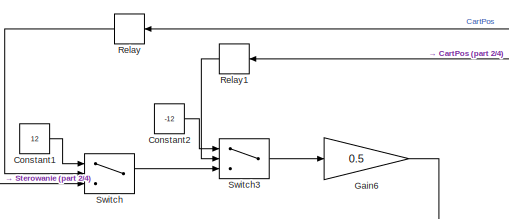
[diagram: root canvas - part 1/4, top left region]
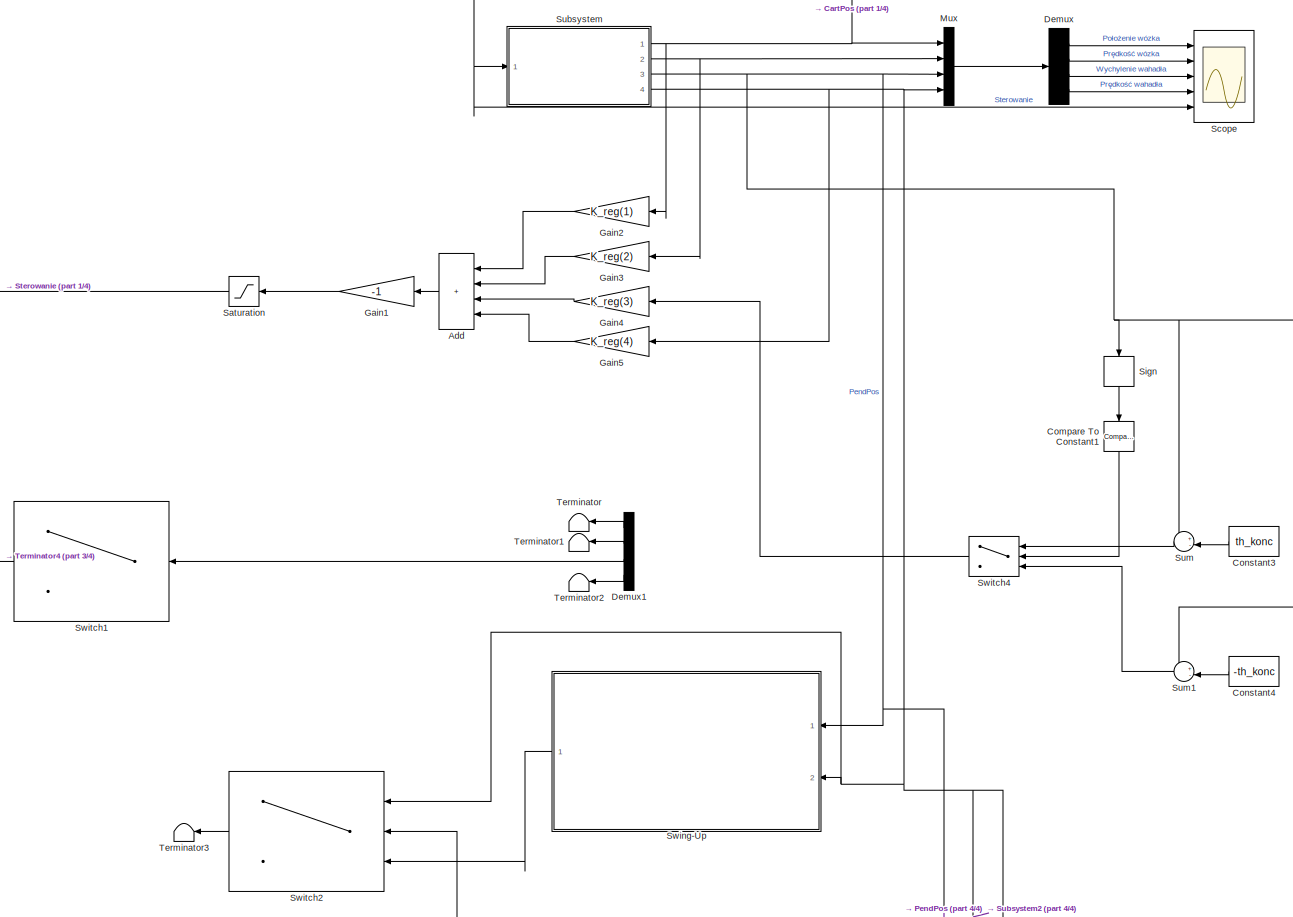
[diagram: root canvas - part 2/4, full width, middle band]
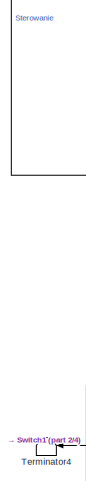
[diagram: root canvas - part 3/4, middle left region]
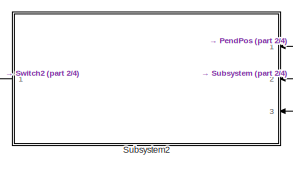
[diagram: root canvas - part 4/4, bottom center region]
MODEL slx_8b89d289fc42
KIND model
CONFIG AbsTol = auto
CONFIG EnableMultiTasking = off
CONFIG FixedStep = auto
CONFIG MaxStep = auto
CONFIG MinStep = auto
CONFIG RelTol = 1e-5
CONFIG SampleTimeConstraint = Unconstrained
CONFIG SolverName = ode45
CONFIG StartTime = 0.0
CONFIG StopTime = 10
BLOCK [Sum] Add
  IconShape = rectangular
  Inputs = ++++
  NameLocation = top
  Ports = [4, 1]
BLOCK [Reference] Compare To Constant1  REF=simulink/Logic and Bit
Operations/Compare
To Constant
  NameLocation = left
  Ports = [1, 1]
  SourceBlock = simulink/Logic and Bit\nOperations/Compare\nTo Constant
  SourceProductBaseCode = SL
  SourceType = Compare To Constant
BLOCK [Constant] Constant1
  Value = 12
BLOCK [Constant] Constant2
  Value = -12
BLOCK [Constant] Constant3
  NameLocation = top
  Value = th_konc
BLOCK [Constant] Constant4
  NameLocation = top
  Value = -th_konc
BLOCK [Demux] Demux
  Ports = [1, 4]
BLOCK [Demux] Demux1
  NameLocation = top
  Ports = [1, 4]
BLOCK [Gain] Gain1
  Gain = -1
  NameLocation = top
BLOCK [Gain] Gain2
  Gain = K_reg(1)
  NameLocation = top
BLOCK [Gain] Gain3
  Gain = K_reg(2)
  NameLocation = top
BLOCK [Gain] Gain4
  Gain = K_reg(3)
  NameLocation = top
BLOCK [Gain] Gain5
  Gain = K_reg(4)
  NameLocation = top
BLOCK [Gain] Gain6
  Gain = 0.5
BLOCK [Mux] Mux
  DisplayOption = bar
  Ports = [4, 1]
BLOCK [Relay] Relay
  NameLocation = top
  OffSwitchValue = 0.6
  OnSwitchValue = 0.7
BLOCK [Relay] Relay1
  NameLocation = top
  OffOutputValue = 1
  OffSwitchValue = -0.7
  OnOutputValue = 0
  OnSwitchValue = -0.6
BLOCK [Saturate] Saturation
  LowerLimit = -12
  NameLocation = top
  UpperLimit = 12
BLOCK [Scope] Scope
  Floating = off
  NumInputPorts = 5
  Ports = [5]
  ScopeSpecificationString = Simulink.scopes.TimeScopeBlockCfg('CurrentConfiguration', extmgr.ConfigurationSet(extmgr.Configuration('Core','General UI',true,'FigureColor',[0.156862745098039 0.156862745098039 0.156862745098039]),extmgr.Configuration('Core','Source UI',true),extmgr.Configuration('Sources','WiredSimulink',true,'DataLoggingSaveFormat','StructureWithTime','DataLoggingDecimation','1','DataLoggingDecimateData',true)...<+8737ch>
BLOCK [Signum] Sign
  NameLocation = left
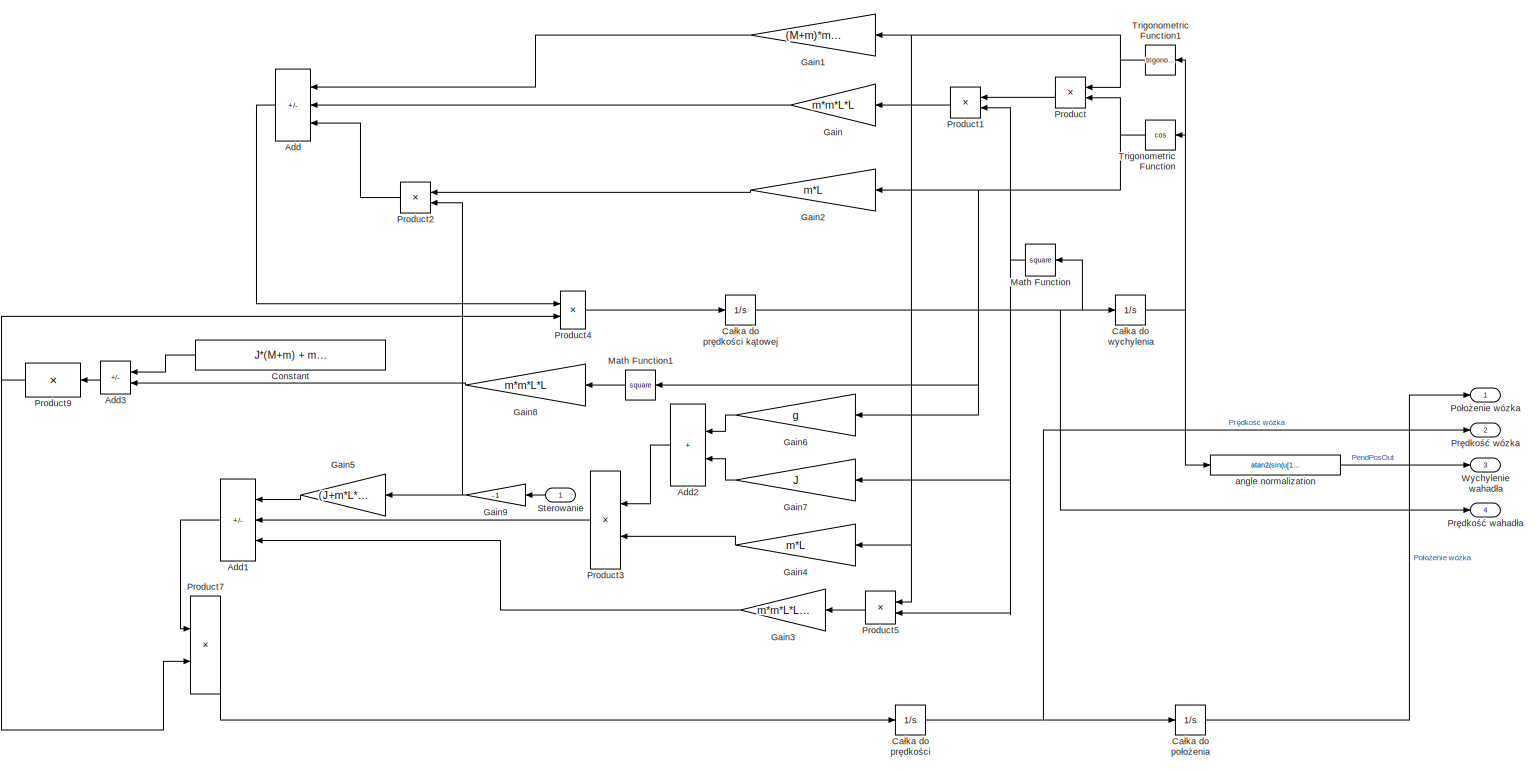
[diagram: Subsystem - part 1/1, most of the canvas]
BLOCK [SubSystem] Subsystem
  Ports = [1, 4]
  RequestExecContextInheritance = off
BLOCK [Sum] Subsystem/Add
  IconShape = rectangular
  Inputs = --+
  NameLocation = top
  Ports = [3, 1]
BLOCK [Sum] Subsystem/Add1
  IconShape = rectangular
  Inputs = +--
  NameLocation = top
  Ports = [3, 1]
BLOCK [Sum] Subsystem/Add2
  IconShape = rectangular
  NameLocation = top
  Ports = [2, 1]
BLOCK [Sum] Subsystem/Add3
  IconShape = rectangular
  Inputs = +-
  NameLocation = top
  Ports = [2, 1]
BLOCK [Integrator] Subsystem/Całka do położenia
  Ports = [1, 1]
BLOCK [Integrator] Subsystem/Całka do prędkości
  Ports = [1, 1]
BLOCK [Integrator] Subsystem/Całka do prędkości kątowej
  Ports = [1, 1]
BLOCK [Integrator] Subsystem/Całka do wychylenia
  InitialCondition = th_pocz
  Ports = [1, 1]
BLOCK [Constant] Subsystem/Constant
  NameLocation = top
  Value = J*(M+m) + m*M*L*L + m*m*L*L
BLOCK [Gain] Subsystem/Gain
  Gain = m*m*L*L
  NameLocation = top
BLOCK [Gain] Subsystem/Gain1
  Gain = (M+m)*m*g*L
  NameLocation = top
BLOCK [Gain] Subsystem/Gain2
  Gain = m*L
  NameLocation = top
BLOCK [Gain] Subsystem/Gain3
  Gain = m*m*L*L*L
  NameLocation = top
BLOCK [Gain] Subsystem/Gain4
  Gain = m*L
  NameLocation = top
BLOCK [Gain] Subsystem/Gain5
  Gain = (J+m*L*L)
  NameLocation = top
BLOCK [Gain] Subsystem/Gain6
  Gain = g
  NameLocation = top
BLOCK [Gain] Subsystem/Gain7
  Gain = J
  NameLocation = top
BLOCK [Gain] Subsystem/Gain8
  Gain = m*m*L*L
  NameLocation = top
BLOCK [Gain] Subsystem/Gain9
  Gain = -1
  NameLocation = top
BLOCK [Math] Subsystem/Math Function
  NameLocation = top
  Operator = square
  Ports = [1, 1]
  SignedPower = on
BLOCK [Math] Subsystem/Math Function1
  NameLocation = top
  Operator = square
  Ports = [1, 1]
  SignedPower = on
BLOCK [Outport] Subsystem/Położenie wózka
BLOCK [Product] Subsystem/Product
  NameLocation = top
  Ports = [2, 1]
BLOCK [Product] Subsystem/Product1
  NameLocation = top
  Ports = [2, 1]
BLOCK [Product] Subsystem/Product2
  NameLocation = top
  Ports = [2, 1]
BLOCK [Product] Subsystem/Product3
  NameLocation = top
  Ports = [2, 1]
BLOCK [Product] Subsystem/Product4
  Ports = [2, 1]
BLOCK [Product] Subsystem/Product5
  NameLocation = top
  Ports = [2, 1]
BLOCK [Product] Subsystem/Product7
  Ports = [2, 1]
BLOCK [Product] Subsystem/Product9
  Inputs = /
  Multiplication = Matrix(*)
  NameLocation = top
  Ports = [1, 1]
BLOCK [Outport] Subsystem/Prędkość wahadła
  Port = 4
BLOCK [Outport] Subsystem/Prędkość wózka
  Port = 2
BLOCK [Inport] Subsystem/Sterowanie
BLOCK [Trigonometry] Subsystem/Trigonometric Function
  NameLocation = top
  Operator = cos
  Ports = [1, 1]
BLOCK [Trigonometry] Subsystem/Trigonometric Function1
  NameLocation = top
  Ports = [1, 1]
BLOCK [Outport] Subsystem/Wychylenie wahadła
  Port = 3
BLOCK [Fcn] Subsystem/angle normalization
  Expr = atan2(sin(u[1]),cos(u[1]))
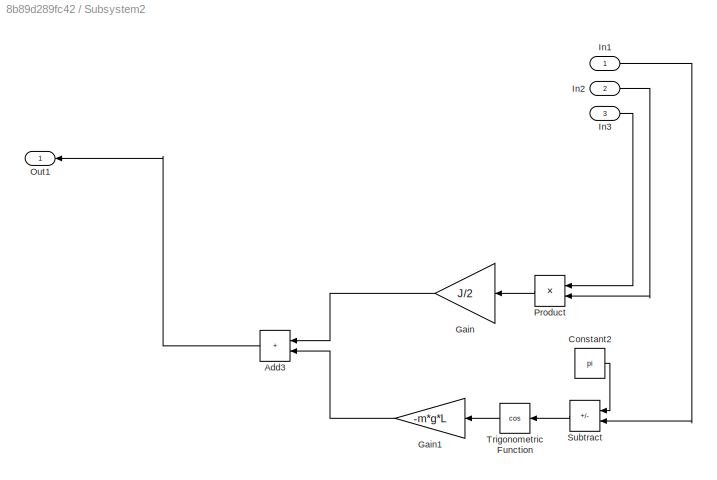
BLOCK [SubSystem] Subsystem2
  NameLocation = top
  Ports = [3, 1]
  RequestExecContextInheritance = off
BLOCK [Sum] Subsystem2/Add3
  IconShape = rectangular
  NameLocation = top
  Ports = [2, 1]
BLOCK [Constant] Subsystem2/Constant2
  Value = pi
BLOCK [Gain] Subsystem2/Gain
  Gain = J/2
  NameLocation = top
BLOCK [Gain] Subsystem2/Gain1
  Gain = -m*g*L
  NameLocation = top
BLOCK [Inport] Subsystem2/In1
BLOCK [Inport] Subsystem2/In2
  Port = 2
BLOCK [Inport] Subsystem2/In3
  Port = 3
BLOCK [Outport] Subsystem2/Out1
BLOCK [Product] Subsystem2/Product
  NameLocation = top
  Ports = [2, 1]
BLOCK [Sum] Subsystem2/Subtract
  IconShape = rectangular
  Inputs = +-
  NameLocation = top
  Ports = [2, 1]
BLOCK [Trigonometry] Subsystem2/Trigonometric Function
  NameLocation = top
  Operator = cos
  Ports = [1, 1]
BLOCK [Sum] Sum
  Inputs = +-|
  Ports = [2, 1]
BLOCK [Sum] Sum1
  Inputs = +-|
  Ports = [2, 1]
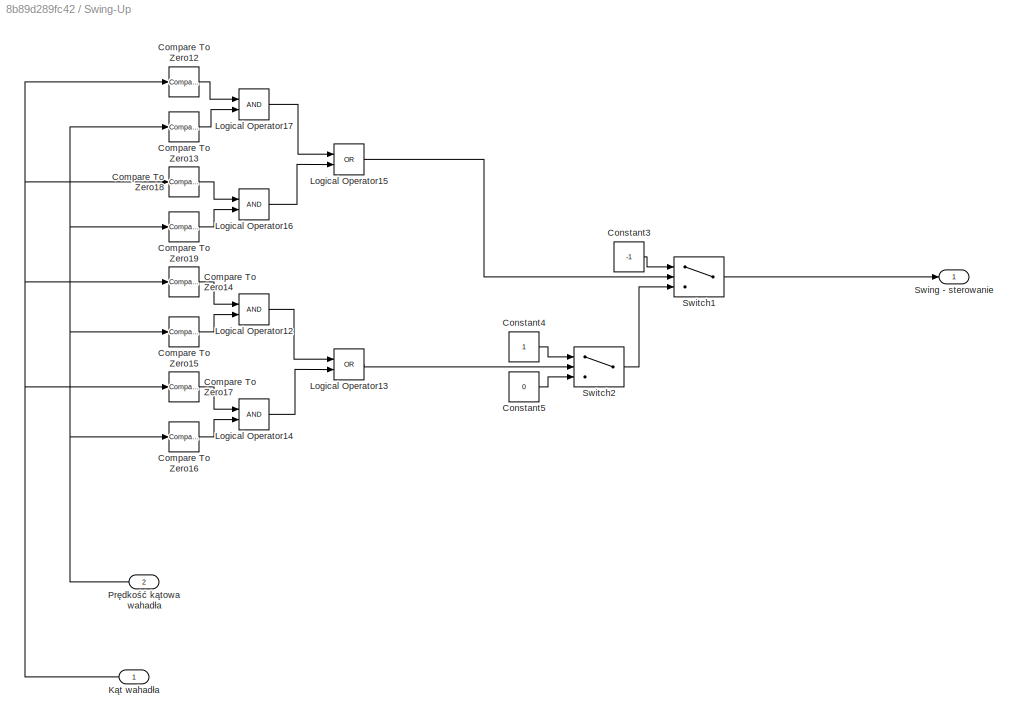
BLOCK [SubSystem] Swing-Up
  NameLocation = top
  Ports = [2, 1]
  RequestExecContextInheritance = off
BLOCK [Reference] Swing-Up/Compare To Zero12  REF=simulink/Logic and Bit
Operations/Compare
To Zero
  Ports = [1, 1]
  SourceBlock = simulink/Logic and Bit\nOperations/Compare\nTo Zero
  SourceProductBaseCode = SL
  SourceType = Compare To Zero
BLOCK [Reference] Swing-Up/Compare To Zero13  REF=simulink/Logic and Bit
Operations/Compare
To Zero
  Ports = [1, 1]
  SourceBlock = simulink/Logic and Bit\nOperations/Compare\nTo Zero
  SourceProductBaseCode = SL
  SourceType = Compare To Zero
BLOCK [Reference] Swing-Up/Compare To Zero14  REF=simulink/Logic and Bit
Operations/Compare
To Zero
  Ports = [1, 1]
  SourceBlock = simulink/Logic and Bit\nOperations/Compare\nTo Zero
  SourceProductBaseCode = SL
  SourceType = Compare To Zero
BLOCK [Reference] Swing-Up/Compare To Zero15  REF=simulink/Logic and Bit
Operations/Compare
To Zero
  Ports = [1, 1]
  SourceBlock = simulink/Logic and Bit\nOperations/Compare\nTo Zero
  SourceProductBaseCode = SL
  SourceType = Compare To Zero
BLOCK [Reference] Swing-Up/Compare To Zero16  REF=simulink/Logic and Bit
Operations/Compare
To Zero
  Ports = [1, 1]
  SourceBlock = simulink/Logic and Bit\nOperations/Compare\nTo Zero
  SourceProductBaseCode = SL
  SourceType = Compare To Zero
BLOCK [Reference] Swing-Up/Compare To Zero17  REF=simulink/Logic and Bit
Operations/Compare
To Zero
  Ports = [1, 1]
  SourceBlock = simulink/Logic and Bit\nOperations/Compare\nTo Zero
  SourceProductBaseCode = SL
  SourceType = Compare To Zero
BLOCK [Reference] Swing-Up/Compare To Zero18  REF=simulink/Logic and Bit
Operations/Compare
To Zero
  Ports = [1, 1]
  SourceBlock = simulink/Logic and Bit\nOperations/Compare\nTo Zero
  SourceProductBaseCode = SL
  SourceType = Compare To Zero
BLOCK [Reference] Swing-Up/Compare To Zero19  REF=simulink/Logic and Bit
Operations/Compare
To Zero
  Ports = [1, 1]
  SourceBlock = simulink/Logic and Bit\nOperations/Compare\nTo Zero
  SourceProductBaseCode = SL
  SourceType = Compare To Zero
BLOCK [Constant] Swing-Up/Constant3
  Value = -1
BLOCK [Constant] Swing-Up/Constant4
BLOCK [Constant] Swing-Up/Constant5
  Value = 0
BLOCK [Inport] Swing-Up/Kąt wahadła
  NameLocation = top
BLOCK [Logic] Swing-Up/Logical Operator12
  AllPortsSameDT = off
  OutDataTypeStr = boolean
  Ports = [2, 1]
BLOCK [Logic] Swing-Up/Logical Operator13
  AllPortsSameDT = off
  Operator = OR
  OutDataTypeStr = boolean
  Ports = [2, 1]
BLOCK [Logic] Swing-Up/Logical Operator14
  AllPortsSameDT = off
  OutDataTypeStr = boolean
  Ports = [2, 1]
BLOCK [Logic] Swing-Up/Logical Operator15
  AllPortsSameDT = off
  Operator = OR
  OutDataTypeStr = boolean
  Ports = [2, 1]
BLOCK [Logic] Swing-Up/Logical Operator16
  AllPortsSameDT = off
  OutDataTypeStr = boolean
  Ports = [2, 1]
BLOCK [Logic] Swing-Up/Logical Operator17
  AllPortsSameDT = off
  OutDataTypeStr = boolean
  Ports = [2, 1]
BLOCK [Inport] Swing-Up/Prędkość kątowa wahadła
  NameLocation = top
  Port = 2
BLOCK [Outport] Swing-Up/Swing - sterowanie
  NameLocation = top
BLOCK [Switch] Swing-Up/Switch1
  Criteria = u2 > Threshold
  InputSameDT = off
  SaturateOnIntegerOverflow = off
BLOCK [Switch] Swing-Up/Switch2
  Criteria = u2 ~= 0
  InputSameDT = off
  SaturateOnIntegerOverflow = off
BLOCK [Switch] Switch
  InputSameDT = off
  SaturateOnIntegerOverflow = off
  Threshold = 1
BLOCK [Switch] Switch1
  InputSameDT = off
  NameLocation = top
  SaturateOnIntegerOverflow = off
  Threshold = 0.5
BLOCK [Switch] Switch2
  InputSameDT = off
  NameLocation = top
  SaturateOnIntegerOverflow = off
  Threshold = 1.6
BLOCK [Switch] Switch3
  InputSameDT = off
  SaturateOnIntegerOverflow = off
  Threshold = 1
BLOCK [Switch] Switch4
  InputSameDT = off
  NameLocation = top
  SaturateOnIntegerOverflow = off
  Threshold = 1
BLOCK [Terminator] Terminator
  NameLocation = top
BLOCK [Terminator] Terminator1
  NameLocation = top
BLOCK [Terminator] Terminator2
  NameLocation = top
BLOCK [Terminator] Terminator3
  NameLocation = top
BLOCK [Terminator] Terminator4
  NameLocation = top
LINE Add:1 -> Gain1:1
LINE Compare To Constant1:1 -> Switch4:2
LINE Constant1:1 -> Switch:1
LINE Constant2:1 -> Switch3:1
LINE Constant3:1 -> Sum:2
LINE Constant4:1 -> Sum1:2
LINE Demux1:1 -> Terminator:1
LINE Demux1:2 -> Terminator1:1
LINE Demux1:3 -> Switch1:2
LINE Demux1:4 -> Terminator2:1
LINE Demux:1 -> Scope:1
LINE Demux:2 -> Scope:2
LINE Demux:3 -> Scope:3
LINE Demux:4 -> Scope:4
LINE Gain1:1 -> Saturation:1
LINE Gain2:1 -> Add:1
LINE Gain3:1 -> Add:2
LINE Gain4:1 -> Add:3
LINE Gain5:1 -> Add:4
NET Gain6:1 -> Scope:5, Subsystem:1
LINE Mux:1 -> Demux:1
LINE Relay1:1 -> Switch3:2
LINE Relay:1 -> Switch:2
LINE Saturation:1 -> Switch:3
LINE Sign:1 -> Compare To Constant1:1
LINE Subsystem/Add1:1 -> Subsystem/Product7:1
LINE Subsystem/Add2:1 -> Subsystem/Product3:1
LINE Subsystem/Add3:1 -> Subsystem/Product9:1
LINE Subsystem/Add:1 -> Subsystem/Product4:1
LINE Subsystem/Całka do położenia:1 -> Subsystem/Położenie wózka:1
NET Subsystem/Całka do prędkości kątowej:1 -> Subsystem/Całka do wychylenia:1, Subsystem/Math Function:1, Subsystem/Prędkość wahadła:1
NET Subsystem/Całka do prędkości:1 -> Subsystem/Całka do położenia:1, Subsystem/Prędkość wózka:1
NET Subsystem/Całka do wychylenia:1 -> Subsystem/Trigonometric Function1:1, Subsystem/Trigonometric Function:1, Subsystem/angle normalization:1
LINE Subsystem/Constant:1 -> Subsystem/Add3:1
LINE Subsystem/Gain1:1 -> Subsystem/Add:1
LINE Subsystem/Gain2:1 -> Subsystem/Product2:1
LINE Subsystem/Gain3:1 -> Subsystem/Add1:3
LINE Subsystem/Gain4:1 -> Subsystem/Product3:2
LINE Subsystem/Gain5:1 -> Subsystem/Add1:1
LINE Subsystem/Gain6:1 -> Subsystem/Add2:1
LINE Subsystem/Gain7:1 -> Subsystem/Add2:2
LINE Subsystem/Gain8:1 -> Subsystem/Add3:2
NET Subsystem/Gain9:1 -> Subsystem/Gain5:1, Subsystem/Product2:2
LINE Subsystem/Gain:1 -> Subsystem/Add:2
LINE Subsystem/Math Function1:1 -> Subsystem/Gain8:1
NET Subsystem/Math Function:1 -> Subsystem/Gain7:1, Subsystem/Product1:2, Subsystem/Product5:2
LINE Subsystem/Product1:1 -> Subsystem/Gain:1
LINE Subsystem/Product2:1 -> Subsystem/Add:3
LINE Subsystem/Product3:1 -> Subsystem/Add1:2
LINE Subsystem/Product4:1 -> Subsystem/Całka do prędkości kątowej:1
LINE Subsystem/Product5:1 -> Subsystem/Gain3:1
LINE Subsystem/Product7:1 -> Subsystem/Całka do prędkości:1
NET Subsystem/Product9:1 -> Subsystem/Product4:2, Subsystem/Product7:2
LINE Subsystem/Product:1 -> Subsystem/Product1:1
LINE Subsystem/Sterowanie:1 -> Subsystem/Gain9:1
NET Subsystem/Trigonometric Function1:1 -> Subsystem/Gain1:1, Subsystem/Gain4:1, Subsystem/Product5:1, Subsystem/Product:1
NET Subsystem/Trigonometric Function:1 -> Subsystem/Gain2:1, Subsystem/Gain6:1, Subsystem/Math Function1:1, Subsystem/Product:2
LINE Subsystem/angle normalization:1 -> Subsystem/Wychylenie wahadła:1
LINE Subsystem2/Add3:1 -> Subsystem2/Out1:1
LINE Subsystem2/Constant2:1 -> Subsystem2/Subtract:1
LINE Subsystem2/Gain1:1 -> Subsystem2/Add3:2
LINE Subsystem2/Gain:1 -> Subsystem2/Add3:1
LINE Subsystem2/In1:1 -> Subsystem2/Subtract:2
LINE Subsystem2/In2:1 -> Subsystem2/Product:2
LINE Subsystem2/In3:1 -> Subsystem2/Product:1
LINE Subsystem2/Product:1 -> Subsystem2/Gain:1
LINE Subsystem2/Subtract:1 -> Subsystem2/Trigonometric Function:1
LINE Subsystem2/Trigonometric Function:1 -> Subsystem2/Gain1:1
LINE Subsystem2:1 -> Switch2:2
NET Subsystem:1 -> Gain2:1, Mux:1, Relay1:1, Relay:1
NET Subsystem:2 -> Gain3:1, Mux:2
NET Subsystem:3 -> Mux:3, Sign:1, Subsystem2:1, Sum1:1, Sum:1, Swing-Up:1
NET Subsystem:4 -> Gain5:1, Mux:4, Subsystem2:2, Subsystem2:3, Swing-Up:2, Switch2:1
LINE Sum1:1 -> Switch4:3
LINE Sum:1 -> Switch4:1
LINE Swing-Up/Compare To Zero12:1 -> Swing-Up/Logical Operator17:1
LINE Swing-Up/Compare To Zero13:1 -> Swing-Up/Logical Operator17:2
LINE Swing-Up/Compare To Zero14:1 -> Swing-Up/Logical Operator12:1
LINE Swing-Up/Compare To Zero15:1 -> Swing-Up/Logical Operator12:2
LINE Swing-Up/Compare To Zero16:1 -> Swing-Up/Logical Operator14:2
LINE Swing-Up/Compare To Zero17:1 -> Swing-Up/Logical Operator14:1
LINE Swing-Up/Compare To Zero18:1 -> Swing-Up/Logical Operator16:1
LINE Swing-Up/Compare To Zero19:1 -> Swing-Up/Logical Operator16:2
LINE Swing-Up/Constant3:1 -> Swing-Up/Switch1:1
LINE Swing-Up/Constant4:1 -> Swing-Up/Switch2:1
LINE Swing-Up/Constant5:1 -> Swing-Up/Switch2:3
NET Swing-Up/Kąt wahadła:1 -> Swing-Up/Compare To Zero12:1, Swing-Up/Compare To Zero14:1, Swing-Up/Compare To Zero17:1, Swing-Up/Compare To Zero18:1
LINE Swing-Up/Logical Operator12:1 -> Swing-Up/Logical Operator13:1
LINE Swing-Up/Logical Operator13:1 -> Swing-Up/Switch2:2
LINE Swing-Up/Logical Operator14:1 -> Swing-Up/Logical Operator13:2
LINE Swing-Up/Logical Operator15:1 -> Swing-Up/Switch1:2
LINE Swing-Up/Logical Operator16:1 -> Swing-Up/Logical Operator15:2
LINE Swing-Up/Logical Operator17:1 -> Swing-Up/Logical Operator15:1
NET Swing-Up/Prędkość kątowa wahadła:1 -> Swing-Up/Compare To Zero13:1, Swing-Up/Compare To Zero15:1, Swing-Up/Compare To Zero16:1, Swing-Up/Compare To Zero19:1
LINE Swing-Up/Switch1:1 -> Swing-Up/Swing - sterowanie:1
LINE Swing-Up/Switch2:1 -> Swing-Up/Switch1:3
LINE Swing-Up:1 -> Switch2:3
LINE Switch1:1 -> Terminator4:1
LINE Switch2:1 -> Terminator3:1
LINE Switch3:1 -> Gain6:1
LINE Switch4:1 -> Gain4:1
LINE Switch:1 -> Switch3:3
note: NET lines group one-source signal fan-out (src -> all destinations, sorted); 1:1 wires keep LINE
